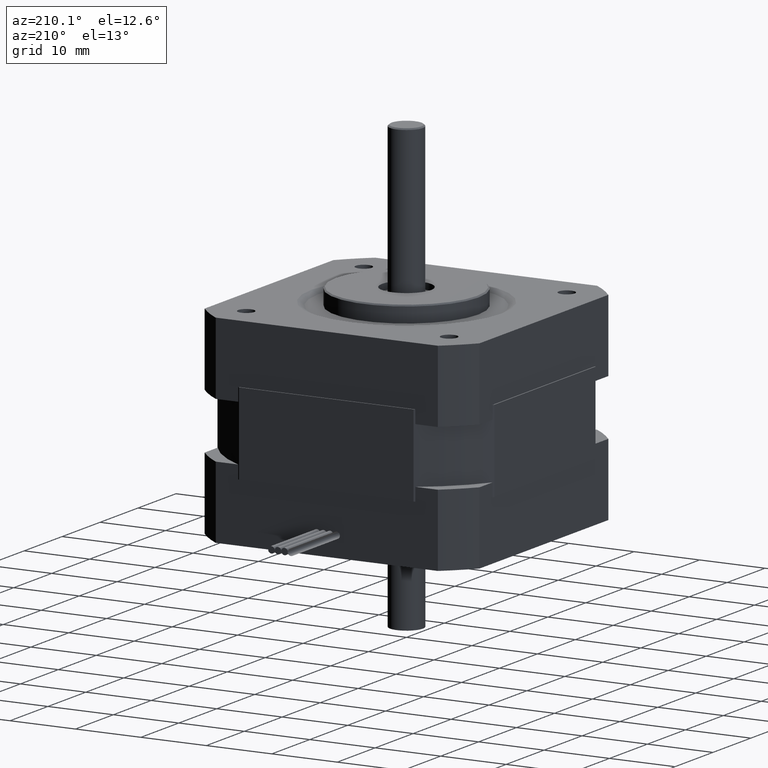
[diagram: clean part render]
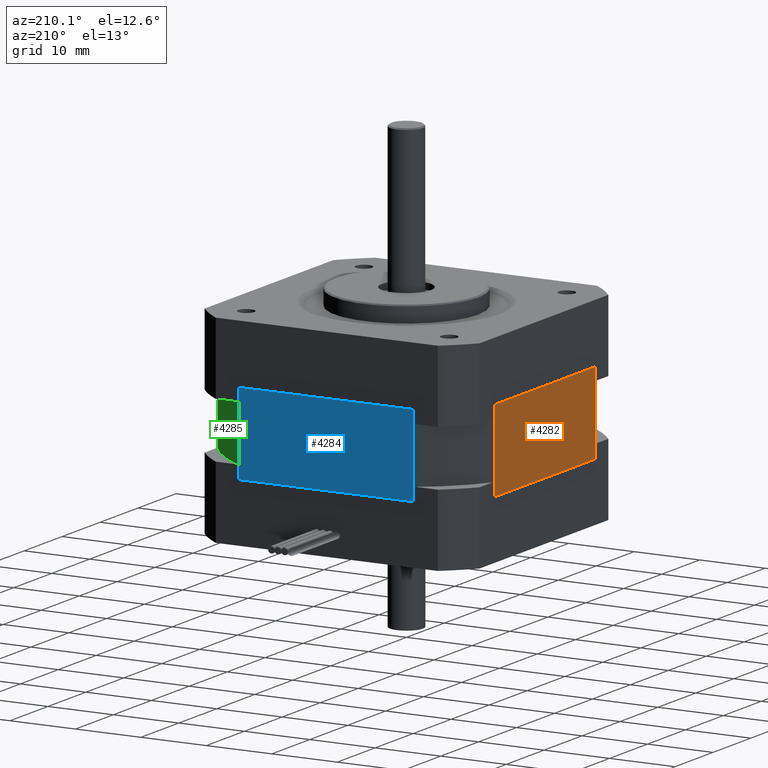
[diagram: same view with three faces highlighted in distinct colors, each labeled with its STEP entity id]
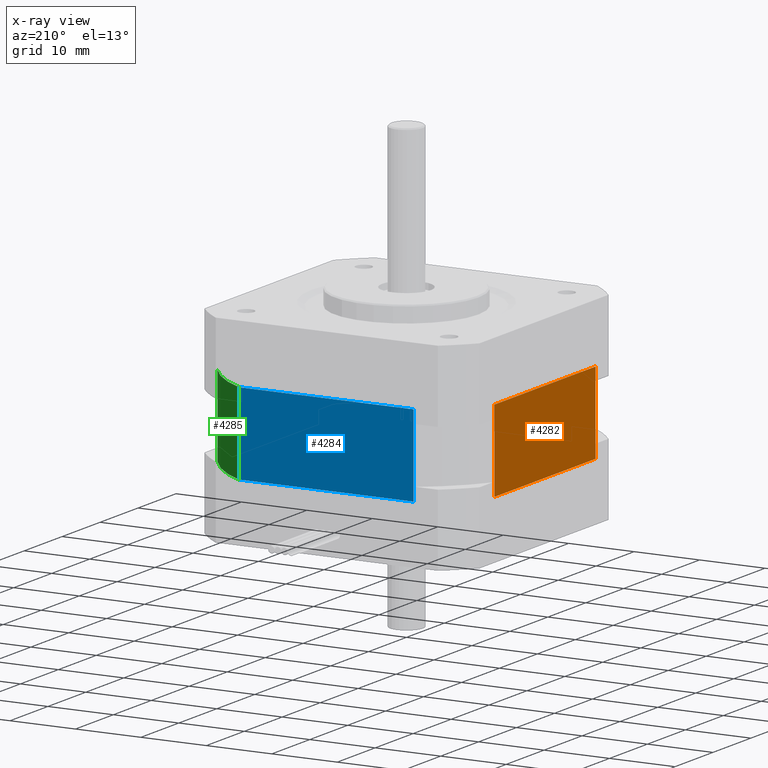
[diagram: x-ray of the same camera — body ghosted, the three highlighted faces saturated]
A machine part, auxiliary view with three faces highlighted in distinct colors.
The next image is the same camera in x-ray (body ghosted, the three faces saturated) — at least one of them is partly hidden behind the body in this view.
Their STEP definitions:

[orange] entity #4282 — the highlighted planar face has unit normal (-1, -0, 0).
#345=LINE('',#7463,#593);
#351=LINE('',#7480,#599);
#352=LINE('',#7483,#600);
#353=LINE('',#7484,#601);
#593=VECTOR('',#6070,10.);
#599=VECTOR('',#6088,10.);
#600=VECTOR('',#6091,10.);
#601=VECTOR('',#6092,10.);
#737=PLANE('',#4816);
#1138=FACE_OUTER_BOUND('',#1488,.T.);
#1488=EDGE_LOOP('',(#3806,#3807,#3808,#3809));
#2120=VERTEX_POINT('',#7460);
#2121=VERTEX_POINT('',#7462);
#2126=VERTEX_POINT('',#7478);
#2127=VERTEX_POINT('',#7482);
#2680=EDGE_CURVE('',#2121,#2120,#345,.T.);
#2689=EDGE_CURVE('',#2126,#2120,#351,.T.);
#2690=EDGE_CURVE('',#2126,#2127,#352,.T.);
#2691=EDGE_CURVE('',#2127,#2121,#353,.T.);
#3806=ORIENTED_EDGE('',*,*,#2690,.T.);
#3807=ORIENTED_EDGE('',*,*,#2691,.T.);
#3808=ORIENTED_EDGE('',*,*,#2680,.T.);
#3809=ORIENTED_EDGE('',*,*,#2689,.F.);
#4282=ADVANCED_FACE('',(#1138),#737,.T.);
#4816=AXIS2_PLACEMENT_3D('',#7481,#6089,#6090);
#6070=DIRECTION('',(1.44375980718239E-15,-1.,-1.38711297625608E-30));
#6088=DIRECTION('',(-9.4368957093138E-16,2.46519032881585E-32,-1.));
#6089=DIRECTION('center_axis',(-1.,-1.44375980718239E-15,9.4368957093138E-16));
#6090=DIRECTION('ref_axis',(1.06581410364015E-15,0.,1.));
#6091=DIRECTION('',(-1.44375980718239E-15,1.,1.38711297625608E-30));
#6092=DIRECTION('',(-9.4368957093138E-16,2.46519032881585E-32,-1.));
#7460=CARTESIAN_POINT('',(-21.15,-13.3295723862396,-15.5));
#7462=CARTESIAN_POINT('',(-21.15,13.3295723862395,-15.5));
#7463=CARTESIAN_POINT('',(-21.15,-13.3295723862396,-15.5));
#7478=CARTESIAN_POINT('',(-21.15,-13.3295723862396,-3.00000000000005));
#7480=CARTESIAN_POINT('',(-21.15,-13.3295723862396,-9.25000000000005));
#7481=CARTESIAN_POINT('Origin',(-21.15,-13.3295723862396,-9.25000000000005));
#7482=CARTESIAN_POINT('',(-21.15,13.3295723862395,-3.00000000000005));
#7483=CARTESIAN_POINT('',(-21.15,-13.3295723862396,-3.00000000000005));
#7484=CARTESIAN_POINT('',(-21.15,13.3295723862395,-9.25000000000005));

[blue] entity #4284 — the highlighted planar face has unit normal (-0, 1, 0).
#346=LINE('',#7466,#594);
#354=LINE('',#7488,#602);
#355=LINE('',#7491,#603);
#356=LINE('',#7492,#604);
#594=VECTOR('',#6073,10.);
#602=VECTOR('',#6097,10.);
#603=VECTOR('',#6100,10.);
#604=VECTOR('',#6101,10.);
#738=PLANE('',#4819);
#1140=FACE_OUTER_BOUND('',#1490,.T.);
#1490=EDGE_LOOP('',(#3814,#3815,#3816,#3817));
#2116=VERTEX_POINT('',#7452);
#2122=VERTEX_POINT('',#7464);
#2128=VERTEX_POINT('',#7486);
#2129=VERTEX_POINT('',#7490);
#2682=EDGE_CURVE('',#2116,#2122,#346,.T.);
#2693=EDGE_CURVE('',#2128,#2122,#354,.T.);
#2694=EDGE_CURVE('',#2128,#2129,#355,.T.);
#2695=EDGE_CURVE('',#2129,#2116,#356,.T.);
#3814=ORIENTED_EDGE('',*,*,#2694,.T.);
#3815=ORIENTED_EDGE('',*,*,#2695,.T.);
#3816=ORIENTED_EDGE('',*,*,#2682,.T.);
#3817=ORIENTED_EDGE('',*,*,#2693,.F.);
#4284=ADVANCED_FACE('',(#1140),#738,.T.);
#4819=AXIS2_PLACEMENT_3D('',#7489,#6098,#6099);
#6073=DIRECTION('',(-1.,-4.44277159917939E-16,9.4368957093138E-16));
#6097=DIRECTION('',(-9.4368957093138E-16,2.46519032881585E-32,-1.));
#6098=DIRECTION('center_axis',(-4.44277159917939E-16,1.,4.4391162570573E-31));
#6099=DIRECTION('ref_axis',(8.88178419700125E-16,0.,1.));
#6100=DIRECTION('',(1.,4.44277159917939E-16,-9.4368957093138E-16));
#6101=DIRECTION('',(-9.4368957093138E-16,2.46519032881585E-32,-1.));
#7452=CARTESIAN_POINT('',(13.3295723862395,21.15,-15.5000000000001));
#7464=CARTESIAN_POINT('',(-13.3295723862396,21.15,-15.5000000000001));
#7466=CARTESIAN_POINT('',(-13.3295723862396,21.15,-15.5000000000001));
#7486=CARTESIAN_POINT('',(-13.3295723862396,21.15,-3.00000000000006));
#7488=CARTESIAN_POINT('',(-13.3295723862396,21.15,-9.25000000000006));
#7489=CARTESIAN_POINT('Origin',(-13.3295723862396,21.15,-9.25000000000006));
#7490=CARTESIAN_POINT('',(13.3295723862395,21.15,-3.00000000000008));
#7491=CARTESIAN_POINT('',(-13.3295723862396,21.15,-3.00000000000006));
#7492=CARTESIAN_POINT('',(13.3295723862395,21.15,-9.25000000000008));

[green] entity #4285 — the highlighted cylindrical surface (partial cylindrical patch) has radius 25 mm, axis along (0, -0, 1).
#356=LINE('',#7492,#604);
#357=LINE('',#7496,#605);
#604=VECTOR('',#6101,10.);
#605=VECTOR('',#6106,10.);
#880=CYLINDRICAL_SURFACE('',#4820,25.);
#1141=FACE_OUTER_BOUND('',#1491,.T.);
#1491=EDGE_LOOP('',(#3818,#3819,#3820,#3821));
#1727=CIRCLE('',#4807,25.);
#1734=CIRCLE('',#4821,25.);
#2115=VERTEX_POINT('',#7451);
#2116=VERTEX_POINT('',#7452);
#2129=VERTEX_POINT('',#7490);
#2130=VERTEX_POINT('',#7494);
#2675=EDGE_CURVE('',#2115,#2116,#1727,.T.);
#2695=EDGE_CURVE('',#2129,#2116,#356,.T.);
#2696=EDGE_CURVE('',#2129,#2130,#1734,.T.);
#2697=EDGE_CURVE('',#2115,#2130,#357,.T.);
#3818=ORIENTED_EDGE('',*,*,#2696,.T.);
#3819=ORIENTED_EDGE('',*,*,#2697,.F.);
#3820=ORIENTED_EDGE('',*,*,#2675,.T.);
#3821=ORIENTED_EDGE('',*,*,#2695,.F.);
#4285=ADVANCED_FACE('',(#1141),#880,.T.);
#4807=AXIS2_PLACEMENT_3D('',#7453,#6062,#6063);
#4820=AXIS2_PLACEMENT_3D('',#7493,#6102,#6103);
#4821=AXIS2_PLACEMENT_3D('',#7495,#6104,#6105);
#6062=DIRECTION('center_axis',(9.4368957093138E-16,-2.46519032881585E-32,
1.));
#6063=DIRECTION('ref_axis',(-0.845999999999999,-0.533182895449583,7.98361377007946E-16));
#6101=DIRECTION('',(-9.4368957093138E-16,2.46519032881585E-32,-1.));
#6102=DIRECTION('center_axis',(9.4368957093138E-16,-2.46519032881585E-32,
1.));
#6103=DIRECTION('ref_axis',(-0.845999999999999,-0.533182895449583,7.98361377007946E-16));
#6104=DIRECTION('center_axis',(-9.4368957093138E-16,2.46519032881585E-32,
-1.));
#6105=DIRECTION('ref_axis',(-0.845999999999999,-0.533182895449583,7.98361377007946E-16));
#6106=DIRECTION('',(9.4368957093138E-16,-2.46519032881585E-32,1.));
#7451=CARTESIAN_POINT('',(21.15,13.3295723862396,-15.5000000000001));
#7452=CARTESIAN_POINT('',(13.3295723862395,21.15,-15.5000000000001));
#7453=CARTESIAN_POINT('Origin',(-1.5334955527635E-14,4.71844785465692E-15,
-15.5000000000001));
#7490=CARTESIAN_POINT('',(13.3295723862395,21.15,-3.00000000000008));
#7492=CARTESIAN_POINT('',(13.3295723862395,21.15,-9.25000000000008));
#7493=CARTESIAN_POINT('Origin',(-9.43689570931383E-15,4.71844785465692E-15,
-9.25000000000007));
#7494=CARTESIAN_POINT('',(21.15,13.3295723862396,-3.00000000000009));
#7495=CARTESIAN_POINT('Origin',(-3.53883589099271E-15,4.71844785465692E-15,
-3.00000000000007));
#7496=CARTESIAN_POINT('',(21.15,13.3295723862396,-9.25000000000009));